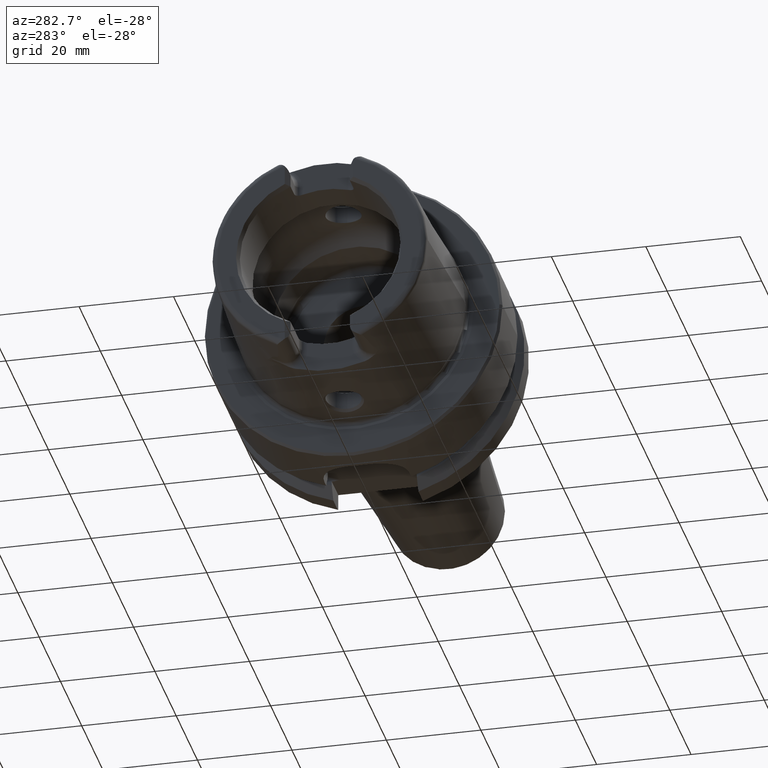
[diagram: clean part render]
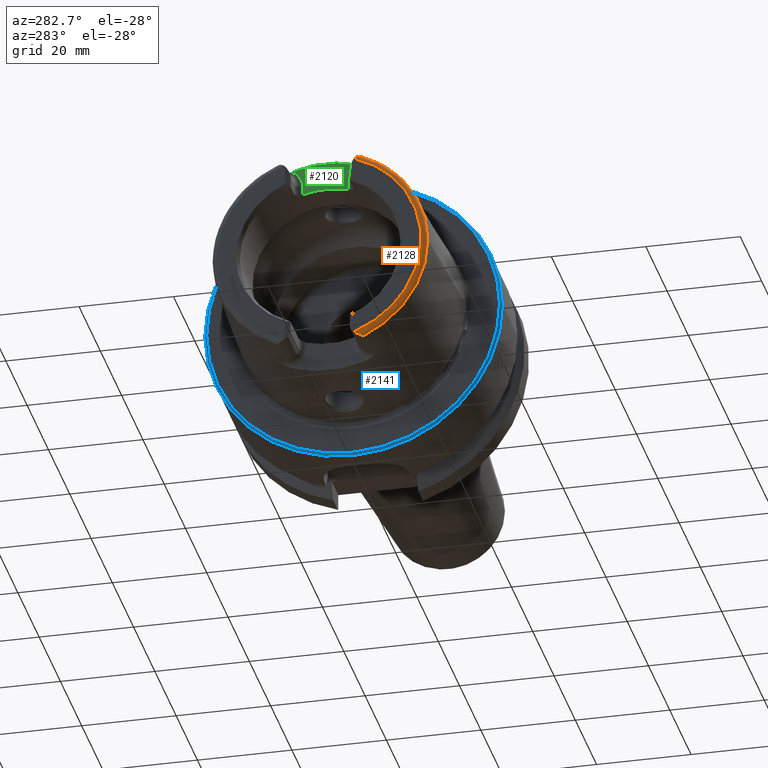
[diagram: same view with three faces highlighted in distinct colors, each labeled with its STEP entity id]
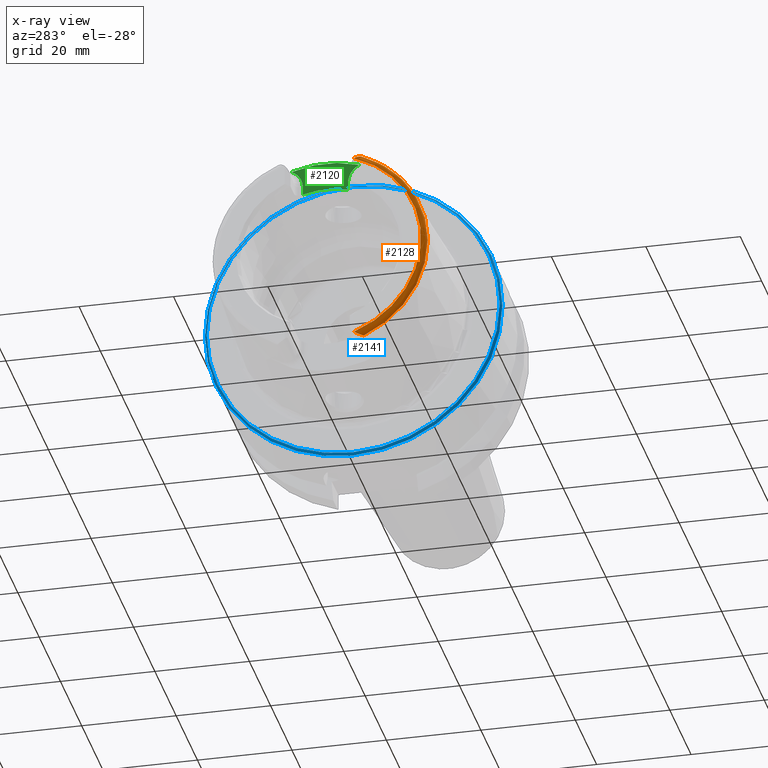
[diagram: x-ray of the same camera — body ghosted, the three highlighted faces saturated]
A machine part, auxiliary view with three faces highlighted in distinct colors.
The next image is the same camera in x-ray (body ghosted, the three faces saturated) — at least one of them is partly hidden behind the body in this view.
Their STEP definitions:

[orange] entity #2128 — the highlighted toroidal blend (fillet) surface has major radius 21.576 mm and minor (blend) radius 1.2 mm.
#32=B_SPLINE_CURVE_WITH_KNOTS('',3,(#3206,#3207,#3208,#3209,#3210,#3211,
#3212,#3213,#3214,#3215,#3216,#3217),.UNSPECIFIED.,.F.,.F.,(4,2,2,2,2,4),
(-0.196612183526961,-0.162100751777108,-0.0988537843219417,-0.0492481970353068,
-0.0201985054494333,0.),.UNSPECIFIED.);
#35=B_SPLINE_CURVE_WITH_KNOTS('',3,(#3297,#3298,#3299,#3300,#3301,#3302,
#3303,#3304,#3305,#3306,#3307,#3308),.UNSPECIFIED.,.F.,.F.,(4,2,2,2,2,4),
(-0.440016298339346,-0.413819168091726,-0.38684223146412,-0.314176502280688,
-0.242048966230796,-0.191409762337977),.UNSPECIFIED.);
#167=TOROIDAL_SURFACE('',#2390,21.5760400159857,1.2);
#325=FACE_OUTER_BOUND('',#459,.T.);
#459=EDGE_LOOP('',(#1932,#1933,#1934,#1935,#1936));
#738=CIRCLE('',#2249,22.7745368271334);
#742=CIRCLE('',#2253,22.7745368271334);
#806=CIRCLE('',#2387,21.5760400159857);
#874=VERTEX_POINT('',#3186);
#875=VERTEX_POINT('',#3205);
#894=VERTEX_POINT('',#3294);
#895=VERTEX_POINT('',#3296);
#910=VERTEX_POINT('',#3497);
#1097=EDGE_CURVE('',#875,#874,#32,.T.);
#1122=EDGE_CURVE('',#895,#894,#35,.T.);
#1142=EDGE_CURVE('',#910,#874,#738,.T.);
#1154=EDGE_CURVE('',#895,#910,#742,.T.);
#1330=EDGE_CURVE('',#894,#875,#806,.T.);
#1932=ORIENTED_EDGE('',*,*,#1122,.T.);
#1933=ORIENTED_EDGE('',*,*,#1330,.T.);
#1934=ORIENTED_EDGE('',*,*,#1097,.T.);
#1935=ORIENTED_EDGE('',*,*,#1142,.F.);
#1936=ORIENTED_EDGE('',*,*,#1154,.F.);
#2128=ADVANCED_FACE('',(#325),#167,.T.);
#2249=AXIS2_PLACEMENT_3D('',#3499,#2636,#2637);
#2253=AXIS2_PLACEMENT_3D('',#3603,#2644,#2645);
#2387=AXIS2_PLACEMENT_3D('',#4477,#2971,#2972);
#2390=AXIS2_PLACEMENT_3D('',#4480,#2977,#2978);
#2636=DIRECTION('center_axis',(1.,0.,0.));
#2637=DIRECTION('ref_axis',(0.,0.,-1.));
#2644=DIRECTION('center_axis',(1.,0.,0.));
#2645=DIRECTION('ref_axis',(0.,0.,-1.));
#2971=DIRECTION('center_axis',(1.,0.,0.));
#2972=DIRECTION('ref_axis',(0.,0.,-1.));
#2977=DIRECTION('center_axis',(1.,0.,0.));
#2978=DIRECTION('ref_axis',(0.,0.,-1.));
#3186=CARTESIAN_POINT('',(-30.8600449304182,-9.1175788960984,-20.8698175067219));
#3205=CARTESIAN_POINT('',(-32.,-7.39118810947246,-20.2705658801576));
#3206=CARTESIAN_POINT('Ctrl Pts',(-32.,-7.39118810947247,-20.2705658801576));
#3207=CARTESIAN_POINT('Ctrl Pts',(-32.,-7.51057646079925,-20.3626402436877));
#3208=CARTESIAN_POINT('Ctrl Pts',(-31.9798323447024,-7.63713759811651,-20.4450895592776));
#3209=CARTESIAN_POINT('Ctrl Pts',(-31.8795915966629,-8.00411514663101,-20.6460540241957));
#3210=CARTESIAN_POINT('Ctrl Pts',(-31.7662291944519,-8.24534617868917,-20.7330636375648));
#3211=CARTESIAN_POINT('Ctrl Pts',(-31.5260503396065,-8.62641311167603,-20.8272571305318));
#3212=CARTESIAN_POINT('Ctrl Pts',(-31.4080214744472,-8.77500391332017,-20.8477181028241));
#3213=CARTESIAN_POINT('Ctrl Pts',(-31.2168511506693,-8.95347341138424,-20.8640491182849));
#3214=CARTESIAN_POINT('Ctrl Pts',(-31.1371144343332,-9.01480627610083,-20.8671499279665));
#3215=CARTESIAN_POINT('Ctrl Pts',(-30.9904836833853,-9.08806135889972,-20.8694907892639));
#3216=CARTESIAN_POINT('Ctrl Pts',(-30.9268776870879,-9.10942530024495,-20.8697257132045));
#3217=CARTESIAN_POINT('Ctrl Pts',(-30.8600449304182,-9.11757889609838,-20.8698175067219));
#3294=CARTESIAN_POINT('',(-32.,-7.39118810947246,20.2705658801576));
#3296=CARTESIAN_POINT('',(-30.8600449304182,-9.1175788960984,20.8698175067219));
#3297=CARTESIAN_POINT('Ctrl Pts',(-30.8600449304182,-9.11757889609839,20.8698175067219));
#3298=CARTESIAN_POINT('Ctrl Pts',(-30.9283853966267,-9.1092413596916,20.8697236423942));
#3299=CARTESIAN_POINT('Ctrl Pts',(-30.9933437959442,-9.08709005778456,20.8694809526083));
#3300=CARTESIAN_POINT('Ctrl Pts',(-31.1177754091763,-9.02396510410894,20.8674193162914));
#3301=CARTESIAN_POINT('Ctrl Pts',(-31.1770034834694,-8.98246838908717,20.8654817144325));
#3302=CARTESIAN_POINT('Ctrl Pts',(-31.3775872414353,-8.81520504288704,20.8530880014962));
#3303=CARTESIAN_POINT('Ctrl Pts',(-31.521057678942,-8.63827412284131,20.8318261586711));
#3304=CARTESIAN_POINT('Ctrl Pts',(-31.7694065050575,-8.23592790359805,20.7289177452773));
#3305=CARTESIAN_POINT('Ctrl Pts',(-31.8689043999789,-8.02084936775806,20.6497346714256));
#3306=CARTESIAN_POINT('Ctrl Pts',(-31.9746332690681,-7.66799906728034,20.4648878758955));
#3307=CARTESIAN_POINT('Ctrl Pts',(-32.,-7.52524774054413,20.3739549886328));
#3308=CARTESIAN_POINT('Ctrl Pts',(-32.,-7.39118810947247,20.2705658801576));
#3497=CARTESIAN_POINT('',(-30.8600449304182,-22.7745368271334,-2.78907636274124E-15));
#3499=CARTESIAN_POINT('Origin',(-30.8600449304182,0.,0.));
#3603=CARTESIAN_POINT('Origin',(-30.8600449304182,0.,0.));
#4477=CARTESIAN_POINT('Origin',(-32.,0.,0.));
#4480=CARTESIAN_POINT('Origin',(-30.8,0.,0.));

[blue] entity #2141 — the highlighted conical surface has half-angle 45 deg.
#338=FACE_OUTER_BOUND('',#476,.T.);
#476=EDGE_LOOP('',(#1987,#1988,#1989,#1990));
#587=LINE('',#4532,#697);
#697=VECTOR('',#3046,31.25);
#784=CIRCLE('',#2343,31.5);
#825=CIRCLE('',#2420,31.);
#1010=VERTEX_POINT('',#4373);
#1036=VERTEX_POINT('',#4529);
#1297=EDGE_CURVE('',#1010,#1010,#784,.T.);
#1354=EDGE_CURVE('',#1036,#1036,#825,.T.);
#1355=EDGE_CURVE('',#1010,#1036,#587,.T.);
#1987=ORIENTED_EDGE('',*,*,#1297,.F.);
#1988=ORIENTED_EDGE('',*,*,#1355,.T.);
#1989=ORIENTED_EDGE('',*,*,#1354,.T.);
#1990=ORIENTED_EDGE('',*,*,#1355,.F.);
#2020=CONICAL_SURFACE('',#2421,31.25,0.785398163397447);
#2141=ADVANCED_FACE('',(#338),#2020,.T.);
#2343=AXIS2_PLACEMENT_3D('',#4375,#2876,#2877);
#2420=AXIS2_PLACEMENT_3D('',#4530,#3042,#3043);
#2421=AXIS2_PLACEMENT_3D('',#4531,#3044,#3045);
#2876=DIRECTION('center_axis',(1.,0.,0.));
#2877=DIRECTION('ref_axis',(0.,0.,-1.));
#3042=DIRECTION('center_axis',(1.,0.,0.));
#3043=DIRECTION('ref_axis',(0.,0.,-1.));
#3044=DIRECTION('center_axis',(1.,0.,0.));
#3045=DIRECTION('ref_axis',(0.,1.,0.));
#3046=DIRECTION('',(-0.707106781186549,0.707106781186546,8.65956056235492E-17));
#4373=CARTESIAN_POINT('',(0.5,-31.5,-3.85763741731416E-15));
#4375=CARTESIAN_POINT('Origin',(0.5,0.,0.));
#4529=CARTESIAN_POINT('',(-5.89805981832114E-16,-31.,-3.7964050773568E-15));
#4530=CARTESIAN_POINT('Origin',(0.,0.,0.));
#4531=CARTESIAN_POINT('Origin',(0.25,0.,0.));
#4532=CARTESIAN_POINT('',(0.25,-31.25,-3.82702124733548E-15));

[green] entity #2120 — the highlighted planar face has unit normal (-1, 0, 0).
#140=PLANE('',#2372);
#317=FACE_OUTER_BOUND('',#451,.T.);
#451=EDGE_LOOP('',(#1881,#1882,#1883,#1884,#1885,#1886));
#575=LINE('',#4381,#685);
#576=LINE('',#4410,#686);
#685=VECTOR('',#2884,10.);
#686=VECTOR('',#2897,10.);
#741=CIRCLE('',#2252,23.0180260521042);
#786=CIRCLE('',#2348,4.38);
#788=CIRCLE('',#2351,4.38);
#798=CIRCLE('',#2373,17.);
#917=VERTEX_POINT('',#3572);
#918=VERTEX_POINT('',#3587);
#1011=VERTEX_POINT('',#4378);
#1012=VERTEX_POINT('',#4380);
#1013=VERTEX_POINT('',#4395);
#1014=VERTEX_POINT('',#4399);
#1152=EDGE_CURVE('',#917,#918,#741,.T.);
#1299=EDGE_CURVE('',#1011,#1012,#575,.T.);
#1301=EDGE_CURVE('',#918,#1011,#786,.T.);
#1303=EDGE_CURVE('',#1013,#917,#788,.T.);
#1305=EDGE_CURVE('',#1014,#1013,#576,.T.);
#1321=EDGE_CURVE('',#1012,#1014,#798,.T.);
#1881=ORIENTED_EDGE('',*,*,#1301,.F.);
#1882=ORIENTED_EDGE('',*,*,#1152,.F.);
#1883=ORIENTED_EDGE('',*,*,#1303,.F.);
#1884=ORIENTED_EDGE('',*,*,#1305,.F.);
#1885=ORIENTED_EDGE('',*,*,#1321,.F.);
#1886=ORIENTED_EDGE('',*,*,#1299,.F.);
#2120=ADVANCED_FACE('',(#317),#140,.T.);
#2252=AXIS2_PLACEMENT_3D('',#3588,#2642,#2643);
#2348=AXIS2_PLACEMENT_3D('',#4393,#2887,#2888);
#2351=AXIS2_PLACEMENT_3D('',#4397,#2893,#2894);
#2372=AXIS2_PLACEMENT_3D('',#4458,#2940,#2941);
#2373=AXIS2_PLACEMENT_3D('',#4459,#2942,#2943);
#2642=DIRECTION('center_axis',(1.,0.,0.));
#2643=DIRECTION('ref_axis',(0.,1.,0.));
#2884=DIRECTION('',(0.,-1.58830189502884E-16,-1.));
#2887=DIRECTION('center_axis',(-1.,0.,0.));
#2888=DIRECTION('ref_axis',(0.,0.601141749549969,0.799142413433302));
#2893=DIRECTION('center_axis',(-1.,0.,0.));
#2894=DIRECTION('ref_axis',(0.,-0.601141749549969,0.799142413433301));
#2897=DIRECTION('',(0.,-1.58830189502884E-16,1.));
#2940=DIRECTION('center_axis',(-1.,0.,0.));
#2941=DIRECTION('ref_axis',(0.,0.,1.));
#2942=DIRECTION('center_axis',(-1.,0.,0.));
#2943=DIRECTION('ref_axis',(0.,1.,0.));
#3572=CARTESIAN_POINT('',(-26.,7.14127219004964,21.8822246319466));
#3587=CARTESIAN_POINT('',(-26.,-7.14127219004964,21.8822246319466));
#3588=CARTESIAN_POINT('Origin',(-26.,0.,0.));
#4378=CARTESIAN_POINT('',(-26.,-4.77,17.99));
#4380=CARTESIAN_POINT('',(-26.,-4.77,16.3170800083839));
#4381=CARTESIAN_POINT('',(-26.,-4.77,14.75));
#4393=CARTESIAN_POINT('Origin',(-26.,-9.15,17.99));
#4395=CARTESIAN_POINT('',(-26.,4.77,17.99));
#4397=CARTESIAN_POINT('Origin',(-26.,9.15,17.99));
#4399=CARTESIAN_POINT('',(-26.,4.77,16.3170800083839));
#4410=CARTESIAN_POINT('',(-26.,4.77,18.245));
#4458=CARTESIAN_POINT('Origin',(-26.,-2.22044604925031E-15,18.5));
#4459=CARTESIAN_POINT('Origin',(-26.,0.,0.));